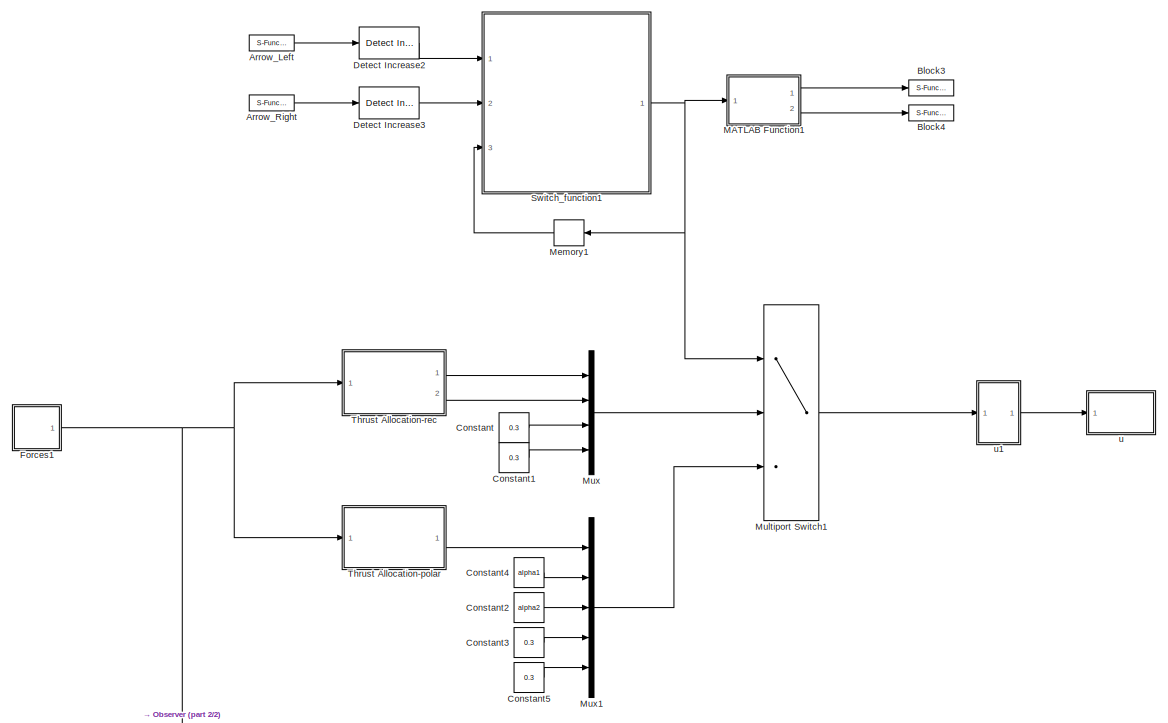
[diagram: root canvas - part 1/2, right side, full height]
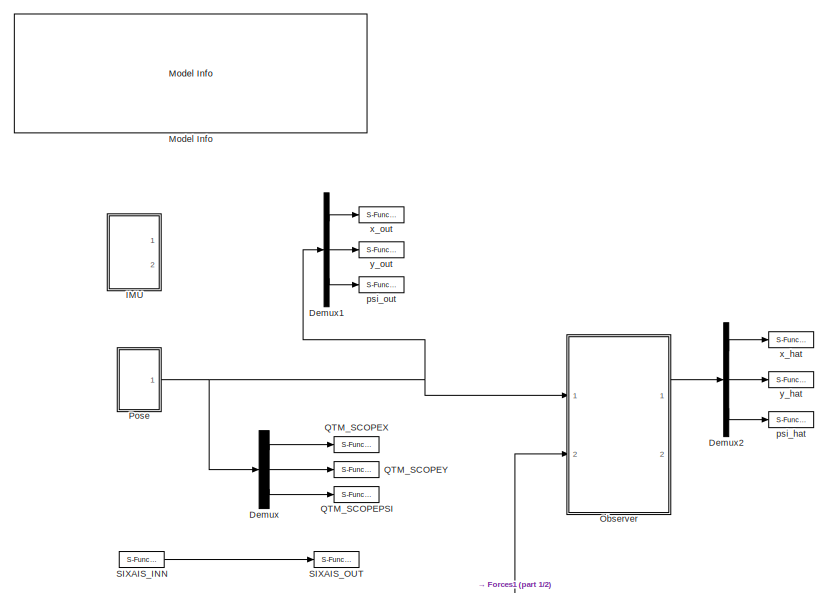
[diagram: root canvas - part 2/2, middle left region]
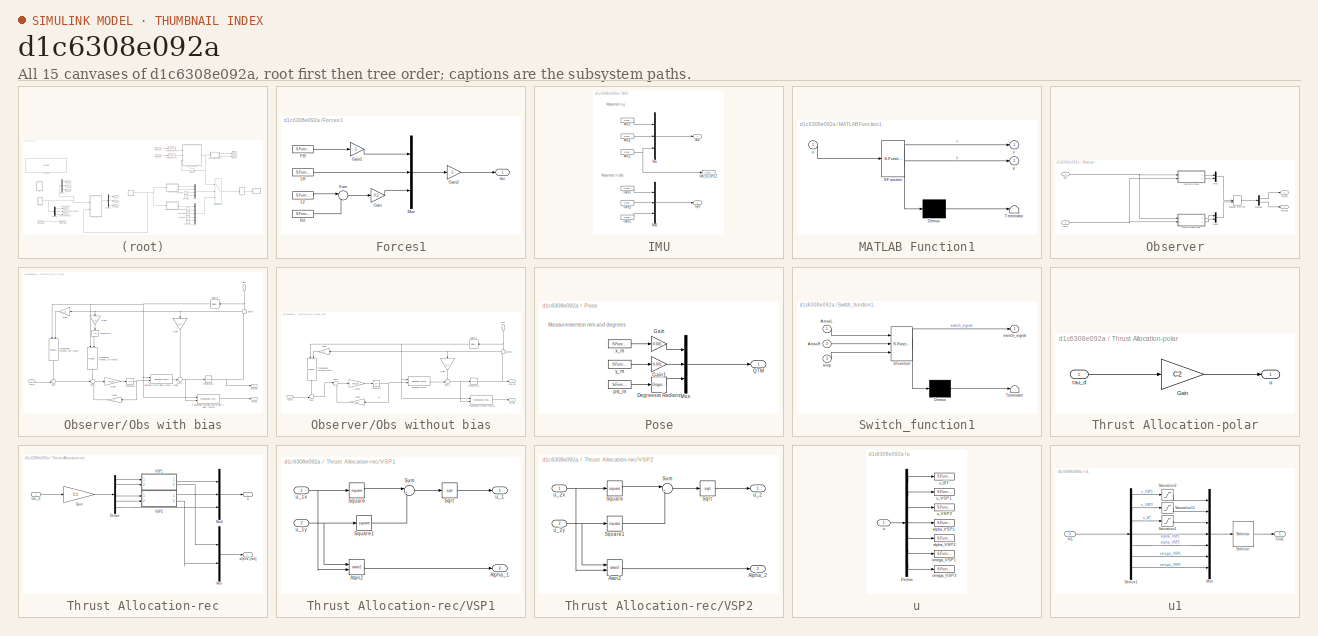
[diagram: thumbnail index - all 15 canvases of the model, root first then tree order]
MODEL slx_d1c6308e092a
KIND model
CONFIG AbsTol = auto
CONFIG EnableMultiTasking = on
CONFIG FixedStep = 0.01
CONFIG MaxStep = auto
CONFIG MinStep = auto
CONFIG RelTol = 1e-3
CONFIG SampleTimeConstraint = Unconstrained
CONFIG Solver = ode4
CONFIG SolverName = ode4
CONFIG StartTime = 0.0
CONFIG StopTime = inf
BLOCK [S-Function] Arrow_Left
  CopyFcn = NIVeriStand_MDL_functions('', 'IO_copy');
  DeleteFcn = NIVeriStand_MDL_functions('', 'IO_delete');
  EnableBusSupport = off
  FunctionName = NIVeriStandIO
  MoveFcn = set_param(gcb, 'Mask', 'on');
  Parameters = width dtype portnum stime stype btype
  Ports = [0, 1]
  Priority = 2
  SFcnIsStateOwnerBlock = off
  SFunctionDeploymentMode = off
BLOCK [S-Function] Arrow_Right
  CopyFcn = NIVeriStand_MDL_functions('', 'IO_copy');
  DeleteFcn = NIVeriStand_MDL_functions('', 'IO_delete');
  EnableBusSupport = off
  FunctionName = NIVeriStandIO
  MoveFcn = set_param(gcb, 'Mask', 'on');
  Parameters = width dtype portnum stime stype btype
  Ports = [0, 1]
  Priority = 3
  SFcnIsStateOwnerBlock = off
  SFunctionDeploymentMode = off
BLOCK [S-Function] Block3
  CopyFcn = NIVeriStand_MDL_functions('', 'IO_copy');
  DeleteFcn = NIVeriStand_MDL_functions('', 'IO_delete');
  EnableBusSupport = off
  FunctionName = NIVeriStandIO
  MoveFcn = set_param(gcb, 'Mask', 'on');
  Parameters = width dtype portnum stime stype btype
  Ports = [1]
  Priority = 8
  SFcnIsStateOwnerBlock = off
  SFunctionDeploymentMode = off
BLOCK [S-Function] Block4
  CopyFcn = NIVeriStand_MDL_functions('', 'IO_copy');
  DeleteFcn = NIVeriStand_MDL_functions('', 'IO_delete');
  EnableBusSupport = off
  FunctionName = NIVeriStandIO
  MoveFcn = set_param(gcb, 'Mask', 'on');
  Parameters = width dtype portnum stime stype btype
  Ports = [1]
  Priority = 9
  SFcnIsStateOwnerBlock = off
  SFunctionDeploymentMode = off
BLOCK [Constant] Constant
  Value = 0.3
BLOCK [Constant] Constant1
  Value = 0.3
BLOCK [Constant] Constant2
  Value = alpha2
BLOCK [Constant] Constant3
  Value = 0.3
BLOCK [Constant] Constant4
  Value = alpha1
BLOCK [Constant] Constant5
  Value = 0.3
BLOCK [Demux] Demux
  DisplayOption = bar
  Outputs = 3
  Ports = [1, 3]
BLOCK [Demux] Demux1
  DisplayOption = bar
  Outputs = 3
  Ports = [1, 3]
BLOCK [Demux] Demux2
  DisplayOption = bar
  Outputs = 3
  Ports = [1, 3]
BLOCK [Reference] Detect Increase2  REF=simulink/Logic and Bit
Operations/Detect
Increase
  Ports = [1, 1]
  SourceBlock = simulink/Logic and Bit\nOperations/Detect\nIncrease
  SourceType = Detect Increase
BLOCK [Reference] Detect Increase3  REF=simulink/Logic and Bit
Operations/Detect
Increase
  Ports = [1, 1]
  SourceBlock = simulink/Logic and Bit\nOperations/Detect\nIncrease
  SourceType = Detect Increase
BLOCK [SubSystem] Forces1
  Ports = [0, 1]
  RequestExecContextInheritance = off
  Variant = off
BLOCK [S-Function] Forces1/FB
  CopyFcn = NIVeriStand_MDL_functions('', 'IO_copy');
  DeleteFcn = NIVeriStand_MDL_functions('', 'IO_delete');
  EnableBusSupport = off
  FunctionName = NIVeriStandIO
  MoveFcn = set_param(gcb, 'Mask', 'on');
  Parameters = width dtype portnum stime stype btype
  Ports = [0, 1]
  Priority = 2
  SFcnIsStateOwnerBlock = off
  SFunctionDeploymentMode = off
BLOCK [Gain] Forces1/Gain
  Gain = 0.5
  OutDataTypeStr = Inherit: Inherit via internal rule
  ParamDataTypeStr = Inherit: Inherit via internal rule
  SaturateOnIntegerOverflow = off
BLOCK [Gain] Forces1/Gain1
  Gain = -1
  OutDataTypeStr = Inherit: Inherit via internal rule
  ParamDataTypeStr = Inherit: Inherit via internal rule
  SaturateOnIntegerOverflow = off
BLOCK [Gain] Forces1/Gain2
  Gain = 5
  OutDataTypeStr = Inherit: Inherit via internal rule
  ParamDataTypeStr = Inherit: Inherit via internal rule
  SaturateOnIntegerOverflow = off
BLOCK [S-Function] Forces1/L2
  CopyFcn = NIVeriStand_MDL_functions('', 'IO_copy');
  DeleteFcn = NIVeriStand_MDL_functions('', 'IO_delete');
  EnableBusSupport = off
  FunctionName = NIVeriStandIO
  MoveFcn = set_param(gcb, 'Mask', 'on');
  Parameters = width dtype portnum stime stype btype
  Ports = [0, 1]
  Priority = 4
  SFcnIsStateOwnerBlock = off
  SFunctionDeploymentMode = off
BLOCK [S-Function] Forces1/LR
  CopyFcn = NIVeriStand_MDL_functions('', 'IO_copy');
  DeleteFcn = NIVeriStand_MDL_functions('', 'IO_delete');
  EnableBusSupport = off
  FunctionName = NIVeriStandIO
  MoveFcn = set_param(gcb, 'Mask', 'on');
  Parameters = width dtype portnum stime stype btype
  Ports = [0, 1]
  Priority = 1
  SFcnIsStateOwnerBlock = off
  SFunctionDeploymentMode = off
BLOCK [Mux] Forces1/Mux
  DisplayOption = bar
  Inputs = 3
  Ports = [3, 1]
BLOCK [S-Function] Forces1/R2
  CopyFcn = NIVeriStand_MDL_functions('', 'IO_copy');
  DeleteFcn = NIVeriStand_MDL_functions('', 'IO_delete');
  EnableBusSupport = off
  FunctionName = NIVeriStandIO
  MoveFcn = set_param(gcb, 'Mask', 'on');
  Parameters = width dtype portnum stime stype btype
  Ports = [0, 1]
  Priority = 3
  SFcnIsStateOwnerBlock = off
  SFunctionDeploymentMode = off
BLOCK [Sum] Forces1/Sum
  IconShape = round
  InputSameDT = off
  Inputs = |-+
  OutDataTypeStr = Inherit: Inherit via internal rule
  Ports = [2, 1]
  SaturateOnIntegerOverflow = off
BLOCK [Outport] Forces1/tau
  IconDisplay = Port number
BLOCK [SubSystem] IMU
  Ports = [0, 2]
  RequestExecContextInheritance = off
  Variant = off
BLOCK [Outport] IMU/Acc
  IconDisplay = Port number
BLOCK [S-Function] IMU/Acc_x
  CopyFcn = NIVeriStand_MDL_functions('', 'IO_copy');
  DeleteFcn = NIVeriStand_MDL_functions('', 'IO_delete');
  EnableBusSupport = off
  FunctionName = NIVeriStandIO
  MoveFcn = set_param(gcb, 'Mask', 'on');
  Parameters = width dtype portnum stime stype btype
  Ports = [0, 1]
  Priority = 1
  SFcnIsStateOwnerBlock = off
  SFunctionDeploymentMode = off
BLOCK [S-Function] IMU/Acc_y
  CopyFcn = NIVeriStand_MDL_functions('', 'IO_copy');
  DeleteFcn = NIVeriStand_MDL_functions('', 'IO_delete');
  EnableBusSupport = off
  FunctionName = NIVeriStandIO
  MoveFcn = set_param(gcb, 'Mask', 'on');
  Parameters = width dtype portnum stime stype btype
  Ports = [0, 1]
  Priority = 2
  SFcnIsStateOwnerBlock = off
  SFunctionDeploymentMode = off
BLOCK [S-Function] IMU/Acc_z
  CopyFcn = NIVeriStand_MDL_functions('', 'IO_copy');
  DeleteFcn = NIVeriStand_MDL_functions('', 'IO_delete');
  EnableBusSupport = off
  FunctionName = NIVeriStandIO
  MoveFcn = set_param(gcb, 'Mask', 'on');
  Parameters = width dtype portnum stime stype btype
  Ports = [0, 1]
  Priority = 3
  SFcnIsStateOwnerBlock = off
  SFunctionDeploymentMode = off
BLOCK [Outport] IMU/Gyro
  IconDisplay = Port number
  Port = 2
BLOCK [S-Function] IMU/Gyro_x
  CopyFcn = NIVeriStand_MDL_functions('', 'IO_copy');
  DeleteFcn = NIVeriStand_MDL_functions('', 'IO_delete');
  EnableBusSupport = off
  FunctionName = NIVeriStandIO
  MoveFcn = set_param(gcb, 'Mask', 'on');
  Parameters = width dtype portnum stime stype btype
  Ports = [0, 1]
  Priority = 4
  SFcnIsStateOwnerBlock = off
  SFunctionDeploymentMode = off
BLOCK [S-Function] IMU/Gyro_y
  CopyFcn = NIVeriStand_MDL_functions('', 'IO_copy');
  DeleteFcn = NIVeriStand_MDL_functions('', 'IO_delete');
  EnableBusSupport = off
  FunctionName = NIVeriStandIO
  MoveFcn = set_param(gcb, 'Mask', 'on');
  Parameters = width dtype portnum stime stype btype
  Ports = [0, 1]
  Priority = 5
  SFcnIsStateOwnerBlock = off
  SFunctionDeploymentMode = off
BLOCK [S-Function] IMU/Gyro_z
  CopyFcn = NIVeriStand_MDL_functions('', 'IO_copy');
  DeleteFcn = NIVeriStand_MDL_functions('', 'IO_delete');
  EnableBusSupport = off
  FunctionName = NIVeriStandIO
  MoveFcn = set_param(gcb, 'Mask', 'on');
  Parameters = width dtype portnum stime stype btype
  Ports = [0, 1]
  Priority = 6
  SFcnIsStateOwnerBlock = off
  SFunctionDeploymentMode = off
BLOCK [S-Function] IMU/IMU_SCOPEZ
  CopyFcn = NIVeriStand_MDL_functions('', 'IO_copy');
  DeleteFcn = NIVeriStand_MDL_functions('', 'IO_delete');
  EnableBusSupport = off
  FunctionName = NIVeriStandIO
  MoveFcn = set_param(gcb, 'Mask', 'on');
  Parameters = width dtype portnum stime stype btype
  Ports = [1]
  Priority = 1
  SFcnIsStateOwnerBlock = off
  SFunctionDeploymentMode = off
BLOCK [Mux] IMU/Mux
  DisplayOption = bar
  Inputs = 3
  Ports = [3, 1]
BLOCK [Mux] IMU/Mux1
  DisplayOption = bar
  Inputs = 3
  Ports = [3, 1]
BLOCK [SubSystem] MATLAB Function1
  ErrorFcn = Stateflow.Translate.translate
  PermitHierarchicalResolution = ExplicitOnly
  Ports = [1, 2]
  RequestExecContextInheritance = off
  SFBlockType = MATLAB Function
  TreatAsAtomicUnit = on
  Variant = off
BLOCK [Demux] MATLAB Function1/ Demux 
  Outputs = 1
  Ports = [1, 1]
BLOCK [S-Function] MATLAB Function1/ SFunction 
  EnableBusSupport = on
  FunctionName = sf_sfun
  PortCounts = [1 3]
  Ports = [1, 3]
  SFcnIsStateOwnerBlock = off
  SFunctionDeploymentMode = off
  Tag = Stateflow S-Function ctrl_custom 1
BLOCK [Terminator] MATLAB Function1/ Terminator 
BLOCK [Inport] MATLAB Function1/u
  IconDisplay = Port number
BLOCK [Outport] MATLAB Function1/x
  IconDisplay = Port number
BLOCK [Outport] MATLAB Function1/y
  IconDisplay = Port number
  Port = 2
BLOCK [Memory] Memory1
  X0 = 4
BLOCK [Reference] Model Info  REF=simulink/Model-Wide
Utilities/Model Info
  Ports = []
  SourceBlock = simulink/Model-Wide\nUtilities/Model Info
  SourceType = CMBlock
BLOCK [MultiPortSwitch] Multiport Switch1
  InputSameDT = off
  Inputs = 2
  Ports = [3, 1]
  SaturateOnIntegerOverflow = off
BLOCK [Mux] Mux
  DisplayOption = bar
  Ports = [4, 1]
BLOCK [Mux] Mux1
  DisplayOption = bar
  Inputs = 5
  Ports = [5, 1]
BLOCK [SubSystem] Observer
  Ports = [2, 2]
  RequestExecContextInheritance = off
  Variant = off
BLOCK [Demux] Observer/Demux
  DisplayOption = bar
  Outputs = 2
  Ports = [1, 2]
BLOCK [ManualSwitch] Observer/Manual Switch
BLOCK [Mux] Observer/Mux
  DisplayOption = bar
  Inputs = 2
  Ports = [2, 1]
BLOCK [Mux] Observer/Mux1
  DisplayOption = bar
  Inputs = 2
  Ports = [2, 1]
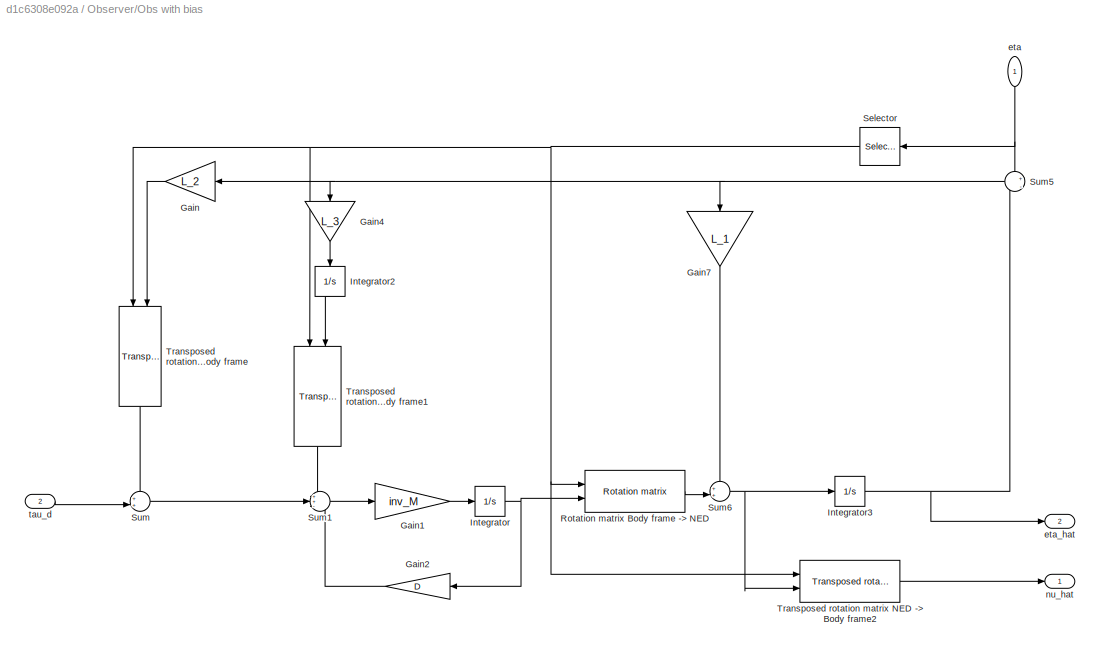
BLOCK [SubSystem] Observer/Obs with bias
  Ports = [2, 2]
  RequestExecContextInheritance = off
  Variant = off
BLOCK [Gain] Observer/Obs with bias/Gain
  Gain = L_2
  Multiplication = Matrix(K*u)
  OutDataTypeStr = Inherit: Inherit via internal rule
  ParamDataTypeStr = Inherit: Inherit via internal rule
  SaturateOnIntegerOverflow = off
BLOCK [Gain] Observer/Obs with bias/Gain1
  Gain = inv_M
  Multiplication = Matrix(K*u)
  OutDataTypeStr = Inherit: Inherit via internal rule
  ParamDataTypeStr = Inherit: Inherit via internal rule
  SaturateOnIntegerOverflow = off
BLOCK [Gain] Observer/Obs with bias/Gain2
  Gain = D
  Multiplication = Matrix(K*u)
  OutDataTypeStr = Inherit: Inherit via internal rule
  ParamDataTypeStr = Inherit: Inherit via internal rule
  SaturateOnIntegerOverflow = off
BLOCK [Gain] Observer/Obs with bias/Gain4
  Gain = L_3
  Multiplication = Matrix(K*u)
  OutDataTypeStr = Inherit: Inherit via internal rule
  ParamDataTypeStr = Inherit: Inherit via internal rule
  SaturateOnIntegerOverflow = off
BLOCK [Gain] Observer/Obs with bias/Gain7
  Gain = L_1
  Multiplication = Matrix(K*u)
  OutDataTypeStr = Inherit: Inherit via internal rule
  ParamDataTypeStr = Inherit: Inherit via internal rule
  SaturateOnIntegerOverflow = off
BLOCK [Integrator] Observer/Obs with bias/Integrator
  Ports = [1, 1]
BLOCK [Integrator] Observer/Obs with bias/Integrator2
  Ports = [1, 1]
BLOCK [Integrator] Observer/Obs with bias/Integrator3
  Ports = [1, 1]
BLOCK [Reference] Observer/Obs with bias/Rotation matrix Body frame -> NED  REF=lib/Rotation matrix  (lib defined in slx_8e0b7e7613f0, slx_8fc754c0eda6, +7 more)
  Ports = [2, 1]
  SourceBlock = lib/Rotation matrix
  SourceType = SubSystem
BLOCK [Selector] Observer/Obs with bias/Selector
  IndexOptions = Index vector (dialog)
  Indices = [ 3]
  InputPortWidth = 3
  OutputSizes = 1
  Ports = [1, 1]
BLOCK [Sum] Observer/Obs with bias/Sum
  IconShape = round
  InputSameDT = off
  Inputs = ++|
  OutDataTypeStr = Inherit: Inherit via internal rule
  Ports = [2, 1]
  SaturateOnIntegerOverflow = off
BLOCK [Sum] Observer/Obs with bias/Sum1
  IconShape = round
  InputSameDT = off
  Inputs = ++-
  OutDataTypeStr = Inherit: Inherit via internal rule
  Ports = [3, 1]
  SaturateOnIntegerOverflow = off
BLOCK [Sum] Observer/Obs with bias/Sum5
  IconShape = round
  InputSameDT = off
  Inputs = +|-
  OutDataTypeStr = Inherit: Inherit via internal rule
  Ports = [2, 1]
  SaturateOnIntegerOverflow = off
BLOCK [Sum] Observer/Obs with bias/Sum6
  IconShape = round
  InputSameDT = off
  Inputs = ++|
  OutDataTypeStr = Inherit: Inherit via internal rule
  Ports = [2, 1]
  SaturateOnIntegerOverflow = off
BLOCK [Reference] Observer/Obs with bias/Transposed rotation matrix NED -> Body frame  REF=lib/Transposed rotation matrix  (lib defined in slx_8e0b7e7613f0, slx_8fc754c0eda6, +7 more)
  Ports = [2, 1]
  SourceBlock = lib/Transposed rotation matrix
  SourceType = SubSystem
BLOCK [Reference] Observer/Obs with bias/Transposed rotation matrix NED -> Body frame1  REF=lib/Transposed rotation matrix  (lib defined in slx_8e0b7e7613f0, slx_8fc754c0eda6, +7 more)
  Ports = [2, 1]
  SourceBlock = lib/Transposed rotation matrix
  SourceType = SubSystem
BLOCK [Reference] Observer/Obs with bias/Transposed rotation matrix NED -> Body frame2  REF=lib/Transposed rotation matrix  (lib defined in slx_8e0b7e7613f0, slx_8fc754c0eda6, +7 more)
  Ports = [2, 1]
  SourceBlock = lib/Transposed rotation matrix
  SourceType = SubSystem
BLOCK [Inport] Observer/Obs with bias/eta
  IconDisplay = Port number
BLOCK [Outport] Observer/Obs with bias/eta_hat
  IconDisplay = Port number
  Port = 2
BLOCK [Outport] Observer/Obs with bias/nu_hat
  IconDisplay = Port number
BLOCK [Inport] Observer/Obs with bias/tau_d
  IconDisplay = Port number
  Port = 2
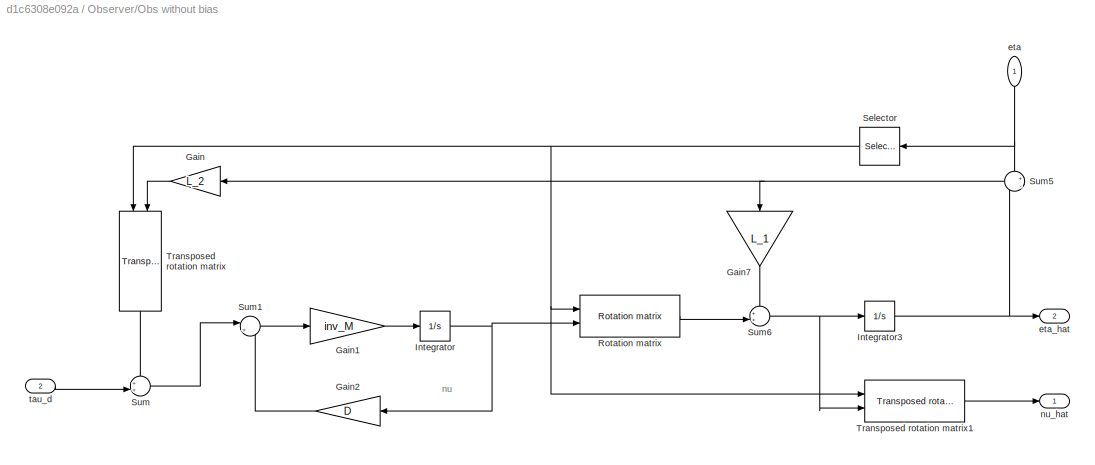
BLOCK [SubSystem] Observer/Obs without bias
  Ports = [2, 2]
  RequestExecContextInheritance = off
  Variant = off
BLOCK [Gain] Observer/Obs without bias/Gain
  Gain = L_2
  Multiplication = Matrix(K*u)
  OutDataTypeStr = Inherit: Inherit via internal rule
  ParamDataTypeStr = Inherit: Inherit via internal rule
  SaturateOnIntegerOverflow = off
BLOCK [Gain] Observer/Obs without bias/Gain1
  Gain = inv_M
  Multiplication = Matrix(K*u)
  OutDataTypeStr = Inherit: Inherit via internal rule
  ParamDataTypeStr = Inherit: Inherit via internal rule
  SaturateOnIntegerOverflow = off
BLOCK [Gain] Observer/Obs without bias/Gain2
  Gain = D
  Multiplication = Matrix(K*u)
  OutDataTypeStr = Inherit: Inherit via internal rule
  ParamDataTypeStr = Inherit: Inherit via internal rule
  SaturateOnIntegerOverflow = off
BLOCK [Gain] Observer/Obs without bias/Gain7
  Gain = L_1
  Multiplication = Matrix(K*u)
  OutDataTypeStr = Inherit: Inherit via internal rule
  ParamDataTypeStr = Inherit: Inherit via internal rule
  SaturateOnIntegerOverflow = off
BLOCK [Integrator] Observer/Obs without bias/Integrator
  Ports = [1, 1]
BLOCK [Integrator] Observer/Obs without bias/Integrator3
  Ports = [1, 1]
BLOCK [Reference] Observer/Obs without bias/Rotation matrix  REF=lib/Rotation matrix  (lib defined in slx_8e0b7e7613f0, slx_8fc754c0eda6, +7 more)
  Ports = [2, 1]
  SourceBlock = lib/Rotation matrix
  SourceType = SubSystem
BLOCK [Selector] Observer/Obs without bias/Selector
  IndexOptions = Index vector (dialog)
  Indices = [ 3]
  InputPortWidth = 3
  OutputSizes = 1
  Ports = [1, 1]
BLOCK [Sum] Observer/Obs without bias/Sum
  IconShape = round
  InputSameDT = off
  Inputs = ++|
  OutDataTypeStr = Inherit: Inherit via internal rule
  Ports = [2, 1]
  SaturateOnIntegerOverflow = off
BLOCK [Sum] Observer/Obs without bias/Sum1
  IconShape = round
  InputSameDT = off
  Inputs = |+-
  OutDataTypeStr = Inherit: Inherit via internal rule
  Ports = [2, 1]
  SaturateOnIntegerOverflow = off
BLOCK [Sum] Observer/Obs without bias/Sum5
  IconShape = round
  InputSameDT = off
  Inputs = +|-
  OutDataTypeStr = Inherit: Inherit via internal rule
  Ports = [2, 1]
  SaturateOnIntegerOverflow = off
BLOCK [Sum] Observer/Obs without bias/Sum6
  IconShape = round
  InputSameDT = off
  Inputs = ++|
  OutDataTypeStr = Inherit: Inherit via internal rule
  Ports = [2, 1]
  SaturateOnIntegerOverflow = off
BLOCK [Reference] Observer/Obs without bias/Transposed rotation matrix  REF=lib/Transposed rotation matrix  (lib defined in slx_8e0b7e7613f0, slx_8fc754c0eda6, +7 more)
  Ports = [2, 1]
  SourceBlock = lib/Transposed rotation matrix
  SourceType = SubSystem
BLOCK [Reference] Observer/Obs without bias/Transposed rotation matrix1  REF=lib/Transposed rotation matrix  (lib defined in slx_8e0b7e7613f0, slx_8fc754c0eda6, +7 more)
  Ports = [2, 1]
  SourceBlock = lib/Transposed rotation matrix
  SourceType = SubSystem
BLOCK [Inport] Observer/Obs without bias/eta
  IconDisplay = Port number
BLOCK [Outport] Observer/Obs without bias/eta_hat
  IconDisplay = Port number
  Port = 2
BLOCK [Outport] Observer/Obs without bias/nu_hat
  IconDisplay = Port number
BLOCK [Inport] Observer/Obs without bias/tau_d
  IconDisplay = Port number
  Port = 2
BLOCK [Inport] Observer/eta
  IconDisplay = Port number
BLOCK [Outport] Observer/eta_hat
  IconDisplay = Port number
BLOCK [Outport] Observer/nu_hat
  IconDisplay = Port number
  Port = 2
BLOCK [Inport] Observer/tau_d
  IconDisplay = Port number
  Port = 2
BLOCK [SubSystem] Pose
  Ports = [0, 1]
  RequestExecContextInheritance = off
  Variant = off
BLOCK [Reference] Pose/Degrees to Radians  REF=simulink_extras/Transformations/Degrees to
Radians
  Ports = [1, 1]
  SourceBlock = simulink_extras/Transformations/Degrees to\nRadians
  SourceType = DegreesToRadians
BLOCK [Gain] Pose/Gain
  Gain = 0.001
  OutDataTypeStr = Inherit: Inherit via internal rule
  ParamDataTypeStr = Inherit: Inherit via internal rule
  SaturateOnIntegerOverflow = off
BLOCK [Gain] Pose/Gain1
  Gain = 0.001
  OutDataTypeStr = Inherit: Inherit via internal rule
  ParamDataTypeStr = Inherit: Inherit via internal rule
  SaturateOnIntegerOverflow = off
BLOCK [Mux] Pose/Mux
  DisplayOption = bar
  Inputs = 3
  Ports = [3, 1]
BLOCK [Outport] Pose/QTM
  IconDisplay = Port number
BLOCK [S-Function] Pose/psi_m
  CopyFcn = NIVeriStand_MDL_functions('', 'IO_copy');
  DeleteFcn = NIVeriStand_MDL_functions('', 'IO_delete');
  EnableBusSupport = off
  FunctionName = NIVeriStandIO
  MoveFcn = set_param(gcb, 'Mask', 'on');
  Parameters = width dtype portnum stime stype btype
  Ports = [0, 1]
  Priority = 3
  SFcnIsStateOwnerBlock = off
  SFunctionDeploymentMode = off
BLOCK [S-Function] Pose/x_m
  CopyFcn = NIVeriStand_MDL_functions('', 'IO_copy');
  DeleteFcn = NIVeriStand_MDL_functions('', 'IO_delete');
  EnableBusSupport = off
  FunctionName = NIVeriStandIO
  MoveFcn = set_param(gcb, 'Mask', 'on');
  Parameters = width dtype portnum stime stype btype
  Ports = [0, 1]
  Priority = 1
  SFcnIsStateOwnerBlock = off
  SFunctionDeploymentMode = off
BLOCK [S-Function] Pose/y_m
  CopyFcn = NIVeriStand_MDL_functions('', 'IO_copy');
  DeleteFcn = NIVeriStand_MDL_functions('', 'IO_delete');
  EnableBusSupport = off
  FunctionName = NIVeriStandIO
  MoveFcn = set_param(gcb, 'Mask', 'on');
  Parameters = width dtype portnum stime stype btype
  Ports = [0, 1]
  Priority = 2
  SFcnIsStateOwnerBlock = off
  SFunctionDeploymentMode = off
BLOCK [S-Function] QTM_SCOPEPSI
  CopyFcn = NIVeriStand_MDL_functions('', 'IO_copy');
  DeleteFcn = NIVeriStand_MDL_functions('', 'IO_delete');
  EnableBusSupport = off
  FunctionName = NIVeriStandIO
  MoveFcn = set_param(gcb, 'Mask', 'on');
  Parameters = width dtype portnum stime stype btype
  Ports = [1]
  Priority = 19
  SFcnIsStateOwnerBlock = off
  SFunctionDeploymentMode = off
BLOCK [S-Function] QTM_SCOPEX
  CopyFcn = NIVeriStand_MDL_functions('', 'IO_copy');
  DeleteFcn = NIVeriStand_MDL_functions('', 'IO_delete');
  EnableBusSupport = off
  FunctionName = NIVeriStandIO
  MoveFcn = set_param(gcb, 'Mask', 'on');
  Parameters = width dtype portnum stime stype btype
  Ports = [1]
  Priority = 17
  SFcnIsStateOwnerBlock = off
  SFunctionDeploymentMode = off
BLOCK [S-Function] QTM_SCOPEY
  CopyFcn = NIVeriStand_MDL_functions('', 'IO_copy');
  DeleteFcn = NIVeriStand_MDL_functions('', 'IO_delete');
  EnableBusSupport = off
  FunctionName = NIVeriStandIO
  MoveFcn = set_param(gcb, 'Mask', 'on');
  Parameters = width dtype portnum stime stype btype
  Ports = [1]
  Priority = 18
  SFcnIsStateOwnerBlock = off
  SFunctionDeploymentMode = off
BLOCK [S-Function] SIXAIS_INN
  CopyFcn = NIVeriStand_MDL_functions('', 'IO_copy');
  DeleteFcn = NIVeriStand_MDL_functions('', 'IO_delete');
  EnableBusSupport = off
  FunctionName = NIVeriStandIO
  MoveFcn = set_param(gcb, 'Mask', 'on');
  Parameters = width dtype portnum stime stype btype
  Ports = [0, 1]
  Priority = 1
  SFcnIsStateOwnerBlock = off
  SFunctionDeploymentMode = off
BLOCK [S-Function] SIXAIS_OUT
  CopyFcn = NIVeriStand_MDL_functions('', 'IO_copy');
  DeleteFcn = NIVeriStand_MDL_functions('', 'IO_delete');
  EnableBusSupport = off
  FunctionName = NIVeriStandIO
  MoveFcn = set_param(gcb, 'Mask', 'on');
  Parameters = width dtype portnum stime stype btype
  Ports = [1]
  Priority = 16
  SFcnIsStateOwnerBlock = off
  SFunctionDeploymentMode = off
BLOCK [SubSystem] Switch_function1
  ErrorFcn = Stateflow.Translate.translate
  PermitHierarchicalResolution = ExplicitOnly
  Ports = [3, 1]
  RequestExecContextInheritance = off
  SFBlockType = MATLAB Function
  TreatAsAtomicUnit = on
  Variant = off
BLOCK [Demux] Switch_function1/ Demux 
  Outputs = 1
  Ports = [1, 1]
BLOCK [S-Function] Switch_function1/ SFunction 
  EnableBusSupport = on
  FunctionName = sf_sfun
  PortCounts = [3 2]
  Ports = [3, 2]
  SFcnIsStateOwnerBlock = off
  SFunctionDeploymentMode = off
  Tag = Stateflow S-Function ctrl_custom 3
BLOCK [Terminator] Switch_function1/ Terminator 
BLOCK [Inport] Switch_function1/ArrowL
  IconDisplay = Port number
BLOCK [Inport] Switch_function1/ArrowR
  IconDisplay = Port number
  Port = 2
BLOCK [Outport] Switch_function1/switch_signal
  IconDisplay = Port number
BLOCK [Inport] Switch_function1/temp
  IconDisplay = Port number
  Port = 3
BLOCK [SubSystem] Thrust Allocation-polar
  Ports = [1, 1]
  RequestExecContextInheritance = off
  Variant = off
BLOCK [Gain] Thrust Allocation-polar/Gain
  Gain = C2
  Multiplication = Matrix(K*u)
  OutDataTypeStr = Inherit: Inherit via internal rule
  ParamDataTypeStr = Inherit: Inherit via internal rule
  SaturateOnIntegerOverflow = off
BLOCK [Inport] Thrust Allocation-polar/tau_d
  IconDisplay = Port number
BLOCK [Outport] Thrust Allocation-polar/u
  IconDisplay = Port number
BLOCK [SubSystem] Thrust Allocation-rec
  Ports = [1, 2]
  RequestExecContextInheritance = off
  Variant = off
BLOCK [Demux] Thrust Allocation-rec/Demux
  DisplayOption = bar
  Outputs = 5
  Ports = [1, 5]
BLOCK [Gain] Thrust Allocation-rec/Gain
  Gain = C1
  Multiplication = Matrix(K*u)
  OutDataTypeStr = Inherit: Inherit via internal rule
  ParamDataTypeStr = Inherit: Inherit via internal rule
  SaturateOnIntegerOverflow = off
BLOCK [Mux] Thrust Allocation-rec/Mux
  DisplayOption = bar
  Inputs = 2
  Ports = [2, 1]
BLOCK [Mux] Thrust Allocation-rec/Mux2
  DisplayOption = bar
  Inputs = 3
  Ports = [3, 1]
BLOCK [SubSystem] Thrust Allocation-rec/VSP1
  Ports = [2, 2]
  RequestExecContextInheritance = off
  Variant = off
BLOCK [Outport] Thrust Allocation-rec/VSP1/Alpha_1
  IconDisplay = Port number
  Port = 2
BLOCK [Trigonometry] Thrust Allocation-rec/VSP1/Atan2
  Operator = atan2
  Ports = [2, 1]
BLOCK [Sqrt] Thrust Allocation-rec/VSP1/Sqrt
BLOCK [Math] Thrust Allocation-rec/VSP1/Square
  Operator = square
  Ports = [1, 1]
BLOCK [Math] Thrust Allocation-rec/VSP1/Square1
  Operator = square
  Ports = [1, 1]
BLOCK [Sum] Thrust Allocation-rec/VSP1/Sum
  IconShape = round
  InputSameDT = off
  Inputs = |++
  OutDataTypeStr = Inherit: Inherit via internal rule
  Ports = [2, 1]
  SaturateOnIntegerOverflow = off
BLOCK [Outport] Thrust Allocation-rec/VSP1/u_1
  IconDisplay = Port number
BLOCK [Inport] Thrust Allocation-rec/VSP1/u_1x
  IconDisplay = Port number
BLOCK [Inport] Thrust Allocation-rec/VSP1/u_1y
  IconDisplay = Port number
  Port = 2
BLOCK [SubSystem] Thrust Allocation-rec/VSP2
  Ports = [2, 2]
  RequestExecContextInheritance = off
  Variant = off
BLOCK [Outport] Thrust Allocation-rec/VSP2/Alpha_2
  IconDisplay = Port number
  Port = 2
BLOCK [Trigonometry] Thrust Allocation-rec/VSP2/Atan2
  Operator = atan2
  Ports = [2, 1]
BLOCK [Sqrt] Thrust Allocation-rec/VSP2/Sqrt
BLOCK [Math] Thrust Allocation-rec/VSP2/Square
  Operator = square
  Ports = [1, 1]
BLOCK [Math] Thrust Allocation-rec/VSP2/Square1
  Operator = square
  Ports = [1, 1]
BLOCK [Sum] Thrust Allocation-rec/VSP2/Sum
  IconShape = round
  InputSameDT = off
  Inputs = |++
  OutDataTypeStr = Inherit: Inherit via internal rule
  Ports = [2, 1]
  SaturateOnIntegerOverflow = off
BLOCK [Outport] Thrust Allocation-rec/VSP2/u_2
  IconDisplay = Port number
BLOCK [Inport] Thrust Allocation-rec/VSP2/u_2x
  IconDisplay = Port number
BLOCK [Inport] Thrust Allocation-rec/VSP2/u_2y
  IconDisplay = Port number
  Port = 2
BLOCK [Outport] Thrust Allocation-rec/alpha [rad]
  IconDisplay = Port number
  Port = 2
BLOCK [Inport] Thrust Allocation-rec/tau_d
  IconDisplay = Port number
BLOCK [Outport] Thrust Allocation-rec/u
  IconDisplay = Port number
BLOCK [S-Function] psi_hat
  CopyFcn = NIVeriStand_MDL_functions('', 'IO_copy');
  DeleteFcn = NIVeriStand_MDL_functions('', 'IO_delete');
  EnableBusSupport = off
  FunctionName = NIVeriStandIO
  MoveFcn = set_param(gcb, 'Mask', 'on');
  Parameters = width dtype portnum stime stype btype
  Ports = [1]
  Priority = 15
  SFcnIsStateOwnerBlock = off
  SFunctionDeploymentMode = off
BLOCK [S-Function] psi_out
  CopyFcn = NIVeriStand_MDL_functions('', 'IO_copy');
  DeleteFcn = NIVeriStand_MDL_functions('', 'IO_delete');
  EnableBusSupport = off
  FunctionName = NIVeriStandIO
  MoveFcn = set_param(gcb, 'Mask', 'on');
  Parameters = width dtype portnum stime stype btype
  Ports = [1]
  Priority = 12
  SFcnIsStateOwnerBlock = off
  SFunctionDeploymentMode = off
BLOCK [SubSystem] u
  Ports = [1]
  RequestExecContextInheritance = off
  Variant = off
BLOCK [Demux] u/Demux
  DisplayOption = bar
  Outputs = 7
  Ports = [1, 7]
BLOCK [S-Function] u/alpha_VSP1
  CopyFcn = NIVeriStand_MDL_functions('', 'IO_copy');
  DeleteFcn = NIVeriStand_MDL_functions('', 'IO_delete');
  EnableBusSupport = off
  FunctionName = NIVeriStandIO
  MoveFcn = set_param(gcb, 'Mask', 'on');
  Parameters = width dtype portnum stime stype btype
  Ports = [1]
  Priority = 4
  SFcnIsStateOwnerBlock = off
  SFunctionDeploymentMode = off
BLOCK [S-Function] u/alpha_VSP2
  CopyFcn = NIVeriStand_MDL_functions('', 'IO_copy');
  DeleteFcn = NIVeriStand_MDL_functions('', 'IO_delete');
  EnableBusSupport = off
  FunctionName = NIVeriStandIO
  MoveFcn = set_param(gcb, 'Mask', 'on');
  Parameters = width dtype portnum stime stype btype
  Ports = [1]
  Priority = 1
  SFcnIsStateOwnerBlock = off
  SFunctionDeploymentMode = off
BLOCK [S-Function] u/omega_VSP1
  CopyFcn = NIVeriStand_MDL_functions('', 'IO_copy');
  DeleteFcn = NIVeriStand_MDL_functions('', 'IO_delete');
  EnableBusSupport = off
  FunctionName = NIVeriStandIO
  MoveFcn = set_param(gcb, 'Mask', 'on');
  Parameters = width dtype portnum stime stype btype
  Ports = [1]
  Priority = 2
  SFcnIsStateOwnerBlock = off
  SFunctionDeploymentMode = off
BLOCK [S-Function] u/omega_VSP2
  CopyFcn = NIVeriStand_MDL_functions('', 'IO_copy');
  DeleteFcn = NIVeriStand_MDL_functions('', 'IO_delete');
  EnableBusSupport = off
  FunctionName = NIVeriStandIO
  MoveFcn = set_param(gcb, 'Mask', 'on');
  Parameters = width dtype portnum stime stype btype
  Ports = [1]
  Priority = 3
  SFcnIsStateOwnerBlock = off
  SFunctionDeploymentMode = off
BLOCK [Inport] u/u
  IconDisplay = Port number
BLOCK [S-Function] u/u_BT
  CopyFcn = NIVeriStand_MDL_functions('', 'IO_copy');
  DeleteFcn = NIVeriStand_MDL_functions('', 'IO_delete');
  EnableBusSupport = off
  FunctionName = NIVeriStandIO
  MoveFcn = set_param(gcb, 'Mask', 'on');
  Parameters = width dtype portnum stime stype btype
  Ports = [1]
  Priority = 5
  SFcnIsStateOwnerBlock = off
  SFunctionDeploymentMode = off
BLOCK [S-Function] u/u_VSP1
  CopyFcn = NIVeriStand_MDL_functions('', 'IO_copy');
  DeleteFcn = NIVeriStand_MDL_functions('', 'IO_delete');
  EnableBusSupport = off
  FunctionName = NIVeriStandIO
  MoveFcn = set_param(gcb, 'Mask', 'on');
  Parameters = width dtype portnum stime stype btype
  Ports = [1]
  Priority = 6
  SFcnIsStateOwnerBlock = off
  SFunctionDeploymentMode = off
BLOCK [S-Function] u/u_VSP2
  CopyFcn = NIVeriStand_MDL_functions('', 'IO_copy');
  DeleteFcn = NIVeriStand_MDL_functions('', 'IO_delete');
  EnableBusSupport = off
  FunctionName = NIVeriStandIO
  MoveFcn = set_param(gcb, 'Mask', 'on');
  Parameters = width dtype portnum stime stype btype
  Ports = [1]
  Priority = 7
  SFcnIsStateOwnerBlock = off
  SFunctionDeploymentMode = off
BLOCK [SubSystem] u1
  Ports = [1, 1]
  RequestExecContextInheritance = off
  Variant = off
BLOCK [Demux] u1/Demux1
  DisplayOption = bar
  Outputs = 7
  Ports = [1, 7]
BLOCK [Inport] u1/In1
  IconDisplay = Port number
BLOCK [Mux] u1/Mux
  DisplayOption = bar
  Inputs = 7
  Ports = [7, 1]
BLOCK [Outport] u1/Out1
  IconDisplay = Port number
BLOCK [Saturate] u1/Saturation1
  InputPortMap = u0
  LowerLimit = -1
  Ports = [1, 1]
  UpperLimit = 1
BLOCK [Saturate] u1/Saturation11
  InputPortMap = u0
  LowerLimit = 0
  Ports = [1, 1]
  UpperLimit = 1
BLOCK [Saturate] u1/Saturation2
  InputPortMap = u0
  LowerLimit = 0
  Ports = [1, 1]
  UpperLimit = 1
BLOCK [Selector] u1/Selector
  IndexOptions = Index vector (dialog)
  Indices = [3 1 2 4 5 6 7]
  InputPortWidth = 7
  OutputSizes = 1
  Ports = [1, 1]
BLOCK [S-Function] x_hat
  CopyFcn = NIVeriStand_MDL_functions('', 'IO_copy');
  DeleteFcn = NIVeriStand_MDL_functions('', 'IO_delete');
  EnableBusSupport = off
  FunctionName = NIVeriStandIO
  MoveFcn = set_param(gcb, 'Mask', 'on');
  Parameters = width dtype portnum stime stype btype
  Ports = [1]
  Priority = 13
  SFcnIsStateOwnerBlock = off
  SFunctionDeploymentMode = off
BLOCK [S-Function] x_out
  CopyFcn = NIVeriStand_MDL_functions('', 'IO_copy');
  DeleteFcn = NIVeriStand_MDL_functions('', 'IO_delete');
  EnableBusSupport = off
  FunctionName = NIVeriStandIO
  MoveFcn = set_param(gcb, 'Mask', 'on');
  Parameters = width dtype portnum stime stype btype
  Ports = [1]
  Priority = 10
  SFcnIsStateOwnerBlock = off
  SFunctionDeploymentMode = off
BLOCK [S-Function] y_hat
  CopyFcn = NIVeriStand_MDL_functions('', 'IO_copy');
  DeleteFcn = NIVeriStand_MDL_functions('', 'IO_delete');
  EnableBusSupport = off
  FunctionName = NIVeriStandIO
  MoveFcn = set_param(gcb, 'Mask', 'on');
  Parameters = width dtype portnum stime stype btype
  Ports = [1]
  Priority = 14
  SFcnIsStateOwnerBlock = off
  SFunctionDeploymentMode = off
BLOCK [S-Function] y_out
  CopyFcn = NIVeriStand_MDL_functions('', 'IO_copy');
  DeleteFcn = NIVeriStand_MDL_functions('', 'IO_delete');
  EnableBusSupport = off
  FunctionName = NIVeriStandIO
  MoveFcn = set_param(gcb, 'Mask', 'on');
  Parameters = width dtype portnum stime stype btype
  Ports = [1]
  Priority = 11
  SFcnIsStateOwnerBlock = off
  SFunctionDeploymentMode = off
ANNOTATION IMU: Measurement in g
ANNOTATION IMU: Measurement in rad/s
ANNOTATION Observer/Obs without bias: nu
ANNOTATION Pose: Measurements in mm and degrees
LINE Arrow_Left:1 -> Detect Increase2:1
LINE Arrow_Right:1 -> Detect Increase3:1
LINE Constant1:1 -> Mux:4
LINE Constant2:1 -> Mux1:3
LINE Constant3:1 -> Mux1:4
LINE Constant4:1 -> Mux1:2
LINE Constant5:1 -> Mux1:5
LINE Constant:1 -> Mux:3
LINE Demux1:1 -> x_out:1
LINE Demux1:2 -> y_out:1
LINE Demux1:3 -> psi_out:1
LINE Demux2:1 -> x_hat:1
LINE Demux2:2 -> y_hat:1
LINE Demux2:3 -> psi_hat:1
LINE Demux:1 -> QTM_SCOPEX:1
LINE Demux:2 -> QTM_SCOPEY:1
LINE Demux:3 -> QTM_SCOPEPSI:1
LINE Detect Increase2:1 -> Switch_function1:1
LINE Detect Increase3:1 -> Switch_function1:2
LINE Forces1/FB:1 -> Forces1/Gain1:1
LINE Forces1/Gain1:1 -> Forces1/Mux:1
LINE Forces1/Gain2:1 -> Forces1/tau:1
LINE Forces1/Gain:1 -> Forces1/Mux:3
LINE Forces1/L2:1 -> Forces1/Sum:1
LINE Forces1/LR:1 -> Forces1/Mux:2
LINE Forces1/Mux:1 -> Forces1/Gain2:1
LINE Forces1/R2:1 -> Forces1/Sum:2
LINE Forces1/Sum:1 -> Forces1/Gain:1
NET Forces1:1 -> Observer:2, Thrust Allocation-polar:1, Thrust Allocation-rec:1
LINE IMU/Acc_x:1 -> IMU/Mux:1
LINE IMU/Acc_y:1 -> IMU/Mux:2
NET IMU/Acc_z:1 -> IMU/IMU_SCOPEZ:1, IMU/Mux:3
LINE IMU/Gyro_x:1 -> IMU/Mux1:1
LINE IMU/Gyro_y:1 -> IMU/Mux1:2
LINE IMU/Gyro_z:1 -> IMU/Mux1:3
LINE IMU/Mux1:1 -> IMU/Gyro:1
LINE IMU/Mux:1 -> IMU/Acc:1
LINE MATLAB Function1:1 -> Block3:1
LINE MATLAB Function1:2 -> Block4:1
LINE Memory1:1 -> Switch_function1:3
LINE Multiport Switch1:1 -> u1:1
LINE Mux1:1 -> Multiport Switch1:3
LINE Mux:1 -> Multiport Switch1:2
LINE Observer/Demux:1 -> Observer/nu_hat:1
LINE Observer/Demux:2 -> Observer/eta_hat:1
LINE Observer/Manual Switch:1 -> Observer/Demux:1
LINE Observer/Mux1:1 -> Observer/Manual Switch:2
LINE Observer/Mux:1 -> Observer/Manual Switch:1
LINE Observer/Obs with bias/Gain1:1 -> Observer/Obs with bias/Integrator:1
LINE Observer/Obs with bias/Gain2:1 -> Observer/Obs with bias/Sum1:3
LINE Observer/Obs with bias/Gain4:1 -> Observer/Obs with bias/Integrator2:1
LINE Observer/Obs with bias/Gain7:1 -> Observer/Obs with bias/Sum6:1
LINE Observer/Obs with bias/Gain:1 -> Observer/Obs with bias/Transposed rotation matrix NED -> Body frame:2
LINE Observer/Obs with bias/Integrator2:1 -> Observer/Obs with bias/Transposed rotation matrix NED -> Body frame1:2
NET Observer/Obs with bias/Integrator3:1 -> Observer/Obs with bias/Sum5:2, Observer/Obs with bias/eta_hat:1
NET Observer/Obs with bias/Integrator:1 -> Observer/Obs with bias/Gain2:1, Observer/Obs with bias/Rotation matrix Body frame -> NED:2
LINE Observer/Obs with bias/Rotation matrix Body frame -> NED:1 -> Observer/Obs with bias/Sum6:2
NET Observer/Obs with bias/Selector:1 -> Observer/Obs with bias/Rotation matrix Body frame -> NED:1, Observer/Obs with bias/Transposed rotation matrix NED -> Body frame1:1, Observer/Obs with bias/Transposed rotation matrix NED -> Body frame2:1, Observer/Obs with bias/Transposed rotation matrix NED -> Body frame:1
LINE Observer/Obs with bias/Sum1:1 -> Observer/Obs with bias/Gain1:1
NET Observer/Obs with bias/Sum5:1 -> Observer/Obs with bias/Gain4:1, Observer/Obs with bias/Gain7:1, Observer/Obs with bias/Gain:1
NET Observer/Obs with bias/Sum6:1 -> Observer/Obs with bias/Integrator3:1, Observer/Obs with bias/Transposed rotation matrix NED -> Body frame2:2
LINE Observer/Obs with bias/Sum:1 -> Observer/Obs with bias/Sum1:2
LINE Observer/Obs with bias/Transposed rotation matrix NED -> Body frame1:1 -> Observer/Obs with bias/Sum1:1
LINE Observer/Obs with bias/Transposed rotation matrix NED -> Body frame2:1 -> Observer/Obs with bias/nu_hat:1
LINE Observer/Obs with bias/Transposed rotation matrix NED -> Body frame:1 -> Observer/Obs with bias/Sum:1
NET Observer/Obs with bias/eta:1 -> Observer/Obs with bias/Selector:1, Observer/Obs with bias/Sum5:1
LINE Observer/Obs with bias/tau_d:1 -> Observer/Obs with bias/Sum:2
LINE Observer/Obs with bias:1 -> Observer/Mux:1
LINE Observer/Obs with bias:2 -> Observer/Mux:2
LINE Observer/Obs without bias/Gain1:1 -> Observer/Obs without bias/Integrator:1
LINE Observer/Obs without bias/Gain2:1 -> Observer/Obs without bias/Sum1:2
LINE Observer/Obs without bias/Gain7:1 -> Observer/Obs without bias/Sum6:1
LINE Observer/Obs without bias/Gain:1 -> Observer/Obs without bias/Transposed rotation matrix:2
NET Observer/Obs without bias/Integrator3:1 -> Observer/Obs without bias/Sum5:2, Observer/Obs without bias/eta_hat:1
NET Observer/Obs without bias/Integrator:1 -> Observer/Obs without bias/Gain2:1, Observer/Obs without bias/Rotation matrix:2
LINE Observer/Obs without bias/Rotation matrix:1 -> Observer/Obs without bias/Sum6:2
NET Observer/Obs without bias/Selector:1 -> Observer/Obs without bias/Rotation matrix:1, Observer/Obs without bias/Transposed rotation matrix1:1, Observer/Obs without bias/Transposed rotation matrix:1
LINE Observer/Obs without bias/Sum1:1 -> Observer/Obs without bias/Gain1:1
NET Observer/Obs without bias/Sum5:1 -> Observer/Obs without bias/Gain7:1, Observer/Obs without bias/Gain:1
NET Observer/Obs without bias/Sum6:1 -> Observer/Obs without bias/Integrator3:1, Observer/Obs without bias/Transposed rotation matrix1:2
LINE Observer/Obs without bias/Sum:1 -> Observer/Obs without bias/Sum1:1
LINE Observer/Obs without bias/Transposed rotation matrix1:1 -> Observer/Obs without bias/nu_hat:1
LINE Observer/Obs without bias/Transposed rotation matrix:1 -> Observer/Obs without bias/Sum:1
NET Observer/Obs without bias/eta:1 -> Observer/Obs without bias/Selector:1, Observer/Obs without bias/Sum5:1
LINE Observer/Obs without bias/tau_d:1 -> Observer/Obs without bias/Sum:2
LINE Observer/Obs without bias:1 -> Observer/Mux1:1
LINE Observer/Obs without bias:2 -> Observer/Mux1:2
NET Observer/eta:1 -> Observer/Obs with bias:1, Observer/Obs without bias:1
NET Observer/tau_d:1 -> Observer/Obs with bias:2, Observer/Obs without bias:2
LINE Observer:1 -> Demux2:1
LINE Pose/Degrees to Radians:1 -> Pose/Mux:3
LINE Pose/Gain1:1 -> Pose/Mux:2
LINE Pose/Gain:1 -> Pose/Mux:1
LINE Pose/Mux:1 -> Pose/QTM:1
LINE Pose/psi_m:1 -> Pose/Degrees to Radians:1
LINE Pose/x_m:1 -> Pose/Gain:1
LINE Pose/y_m:1 -> Pose/Gain1:1
NET Pose:1 -> Demux1:1, Demux:1, Observer:1
LINE SIXAIS_INN:1 -> SIXAIS_OUT:1
NET Switch_function1:1 -> MATLAB Function1:1, Memory1:1, Multiport Switch1:1
LINE Thrust Allocation-polar/Gain:1 -> Thrust Allocation-polar/u:1
LINE Thrust Allocation-polar/tau_d:1 -> Thrust Allocation-polar/Gain:1
LINE Thrust Allocation-polar:1 -> Mux1:1
LINE Thrust Allocation-rec/Demux:1 -> Thrust Allocation-rec/VSP1:1
LINE Thrust Allocation-rec/Demux:2 -> Thrust Allocation-rec/VSP1:2
LINE Thrust Allocation-rec/Demux:3 -> Thrust Allocation-rec/VSP2:1
LINE Thrust Allocation-rec/Demux:4 -> Thrust Allocation-rec/VSP2:2
LINE Thrust Allocation-rec/Demux:5 -> Thrust Allocation-rec/Mux2:3
LINE Thrust Allocation-rec/Gain:1 -> Thrust Allocation-rec/Demux:1
LINE Thrust Allocation-rec/Mux2:1 -> Thrust Allocation-rec/u:1
LINE Thrust Allocation-rec/Mux:1 -> Thrust Allocation-rec/alpha [rad]:1
LINE Thrust Allocation-rec/VSP1/Atan2:1 -> Thrust Allocation-rec/VSP1/Alpha_1:1
LINE Thrust Allocation-rec/VSP1/Sqrt:1 -> Thrust Allocation-rec/VSP1/u_1:1
LINE Thrust Allocation-rec/VSP1/Square1:1 -> Thrust Allocation-rec/VSP1/Sum:2
LINE Thrust Allocation-rec/VSP1/Square:1 -> Thrust Allocation-rec/VSP1/Sum:1
LINE Thrust Allocation-rec/VSP1/Sum:1 -> Thrust Allocation-rec/VSP1/Sqrt:1
NET Thrust Allocation-rec/VSP1/u_1x:1 -> Thrust Allocation-rec/VSP1/Atan2:2, Thrust Allocation-rec/VSP1/Square:1
NET Thrust Allocation-rec/VSP1/u_1y:1 -> Thrust Allocation-rec/VSP1/Atan2:1, Thrust Allocation-rec/VSP1/Square1:1
LINE Thrust Allocation-rec/VSP1:1 -> Thrust Allocation-rec/Mux2:1
LINE Thrust Allocation-rec/VSP1:2 -> Thrust Allocation-rec/Mux:1
LINE Thrust Allocation-rec/VSP2/Atan2:1 -> Thrust Allocation-rec/VSP2/Alpha_2:1
LINE Thrust Allocation-rec/VSP2/Sqrt:1 -> Thrust Allocation-rec/VSP2/u_2:1
LINE Thrust Allocation-rec/VSP2/Square1:1 -> Thrust Allocation-rec/VSP2/Sum:2
LINE Thrust Allocation-rec/VSP2/Square:1 -> Thrust Allocation-rec/VSP2/Sum:1
LINE Thrust Allocation-rec/VSP2/Sum:1 -> Thrust Allocation-rec/VSP2/Sqrt:1
NET Thrust Allocation-rec/VSP2/u_2x:1 -> Thrust Allocation-rec/VSP2/Atan2:2, Thrust Allocation-rec/VSP2/Square:1
NET Thrust Allocation-rec/VSP2/u_2y:1 -> Thrust Allocation-rec/VSP2/Atan2:1, Thrust Allocation-rec/VSP2/Square1:1
LINE Thrust Allocation-rec/VSP2:1 -> Thrust Allocation-rec/Mux2:2
LINE Thrust Allocation-rec/VSP2:2 -> Thrust Allocation-rec/Mux:2
LINE Thrust Allocation-rec/tau_d:1 -> Thrust Allocation-rec/Gain:1
LINE Thrust Allocation-rec:1 -> Mux:1
LINE Thrust Allocation-rec:2 -> Mux:2
LINE u/Demux:1 -> u/u_BT:1
LINE u/Demux:2 -> u/u_VSP1:1
LINE u/Demux:3 -> u/u_VSP2:1
LINE u/Demux:4 -> u/alpha_VSP1:1
LINE u/Demux:5 -> u/alpha_VSP2:1
LINE u/Demux:6 -> u/omega_VSP1:1
LINE u/Demux:7 -> u/omega_VSP2:1
LINE u/u:1 -> u/Demux:1
LINE u1/Demux1:1 -> u1/Saturation2:1
LINE u1/Demux1:2 -> u1/Saturation11:1
LINE u1/Demux1:3 -> u1/Saturation1:1
LINE u1/Demux1:4 -> u1/Mux:4
LINE u1/Demux1:5 -> u1/Mux:5
LINE u1/Demux1:6 -> u1/Mux:6
LINE u1/Demux1:7 -> u1/Mux:7
LINE u1/In1:1 -> u1/Demux1:1
LINE u1/Mux:1 -> u1/Selector:1
LINE u1/Saturation11:1 -> u1/Mux:2
LINE u1/Saturation1:1 -> u1/Mux:3
LINE u1/Saturation2:1 -> u1/Mux:1
LINE u1/Selector:1 -> u1/Out1:1
LINE u1:1 -> u:1
note: NET lines group one-source signal fan-out (src -> all destinations, sorted); 1:1 wires keep LINE
CHART MATLAB Function1 states=1 transitions=1
  STATE_LABEL 'eML_blk_kernel()'
  STATE_LABEL 'SCRIPT:\nfunction [x,y] = fcn(u)\n\nx = 1;\ny = 0;\nif u == 1\n    x = 1;\n    y = 0;\nend\n\nif u == 2\n    x = 0;\n    y = 1;\nend\n\n'
CHART Switch_function1 states=1 transitions=1
  STATE_LABEL 'eML_blk_kernel()'
  STATE_LABEL 'SCRIPT:\n%% Function that takes in impulse button sigals [0,1] and sends out a \n% different signal depentent pn which button has been pressed\n\nfunction switch_signal = fcn(ArrowL,ArrowR,temp)\n%#codegen\npersistent signal;\n\nsignal = temp;\n\nif ArrowL ~= 0\n    signal = 1;\nend\n\nif ArrowR ~= 0\n    signal = 2;\nend\n\n\nswitch_signal = signal;'
